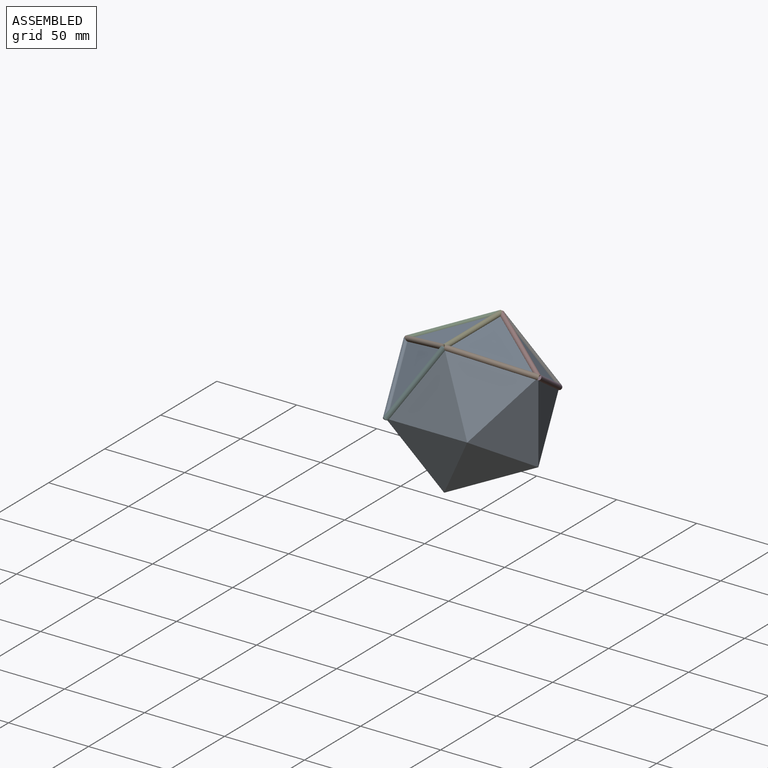
[diagram: assembled view]
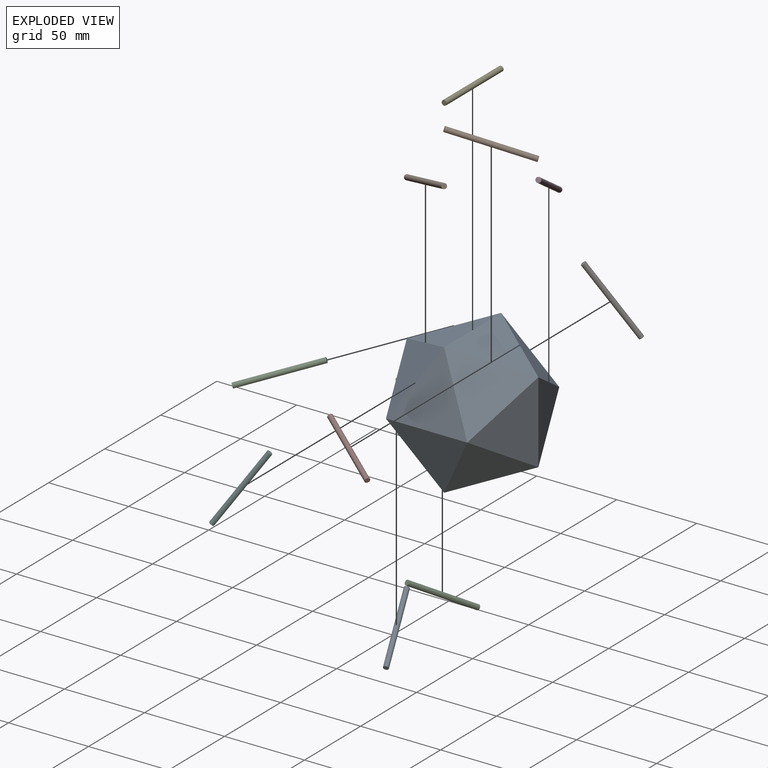
[diagram: exploded view]
GUIDED TOUR — MATED ASSEMBLY (Onshape document 44c461fbfb74a6c415e1d809, AutoMate assembly 44c461fbfb74a6c415e1d809_ab152a500315ef095dabaabe_320af2ce4ad42e542c5491ca_default)

This assembly has 11 components, labeled P0..P10 below (a component is one placed occurrence of a part; the same part can appear more than once), held together by 10 mates. A mate is a constraint between two components; its type names the relative motion it leaves free:
  CYLINDRICAL — leaves both rotation about and translation along the listed axis free.
Axis/direction vectors are unit vectors and 'through' points are millimeter coordinates, both in the assembly's world frame.

MATES
  1. CYLINDRICAL "Cylindrical 3": P4 <-> P8, axis (0.000, -1.000, 0.000) through (0.00, 0.00, 41.10) mm
  2. CYLINDRICAL "Cylindrical 6": P8 <-> P6, axis (-0.500, -0.309, 0.809) through (12.70, 33.25, 20.55) mm
  3. CYLINDRICAL "Cylindrical 1": P8 <-> P1, axis (0.809, -0.500, 0.309) through (-20.55, -12.70, 33.25) mm
  4. CYLINDRICAL "Cylindrical 8": P5 <-> P8, axis (-0.500, -0.309, -0.809) through (-12.70, -33.25, 20.55) mm
  5. CYLINDRICAL "Cylindrical 7": P8 <-> P3, axis (-0.309, 0.809, -0.500) through (33.25, 20.55, 12.70) mm
  6. CYLINDRICAL "Cylindrical 5": P10 <-> P8, axis (-0.809, -0.500, -0.309) through (-20.55, 12.70, 33.25) mm
  7. CYLINDRICAL "Cylindrical 2": P9 <-> P8, axis (-0.809, -0.500, 0.309) through (20.55, -12.70, 33.25) mm
  8. CYLINDRICAL "Cylindrical 4": P7 <-> P8, axis (-0.809, 0.500, 0.309) through (20.55, 12.70, 33.25) mm
  9. CYLINDRICAL "Cylindrical 10": P2 <-> P8, axis (-0.309, -0.809, 0.500) through (-33.25, 20.55, 12.70) mm
  10. CYLINDRICAL "Cylindrical 9": P0 <-> P8, axis (0.309, -0.809, -0.500) through (-33.25, -20.55, 12.70) mm

ASSEMBLY ORDER
  1. P8 — the base component [order verified]
  2. P4 [order verified]
  3. P10 [order verified]
  4. P7 [order verified]
  5. P1 [order verified]
  6. P9 [order verified]
  7. P0 [order verified]
  8. P2 [order verified]
  9. P3 [order verified]
  10. P6 [order verified]
  11. P5 [order verified]
Order-tag legend:
  [order verified] — this step's position reverses a verified removal order: the component was checked to insert without passing through the ones already placed.

Of the 11 components, 1 carries the full construction recipe — the FeatureScript program that regenerates the part's solid from scratch; the rest are supplied as boundary geometry only.
Each toured component is shown spotlighted twice — in the assembled view, then in the exploded view, where a leader line traces a displaced component back to its assembled socket (saturated green if recipe-attached, orange if geometry-only; every other component desaturated gray) — followed by its recipe or geometry summary and the mates that hold it.
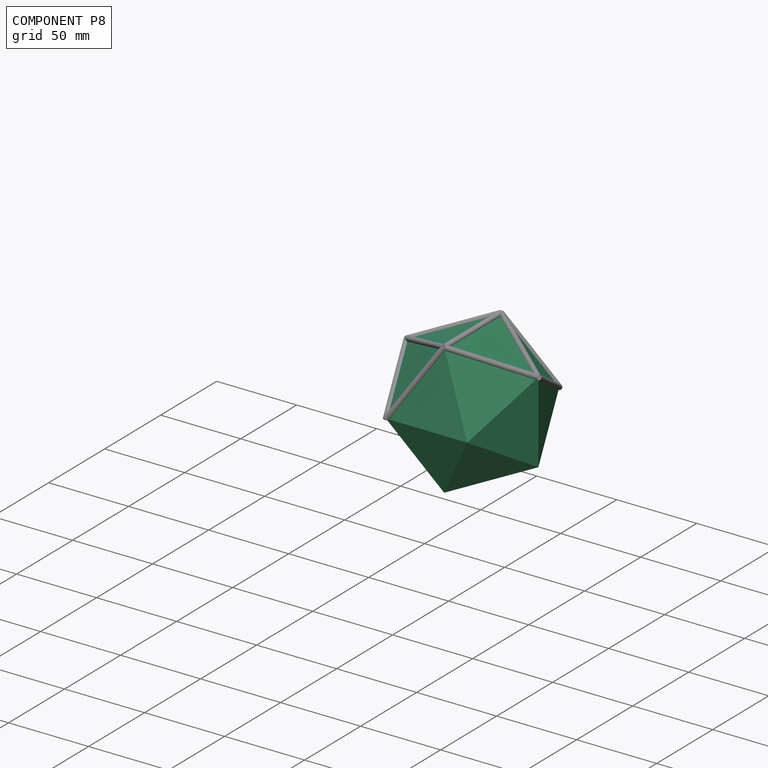
[diagram: component P8 — assembled]
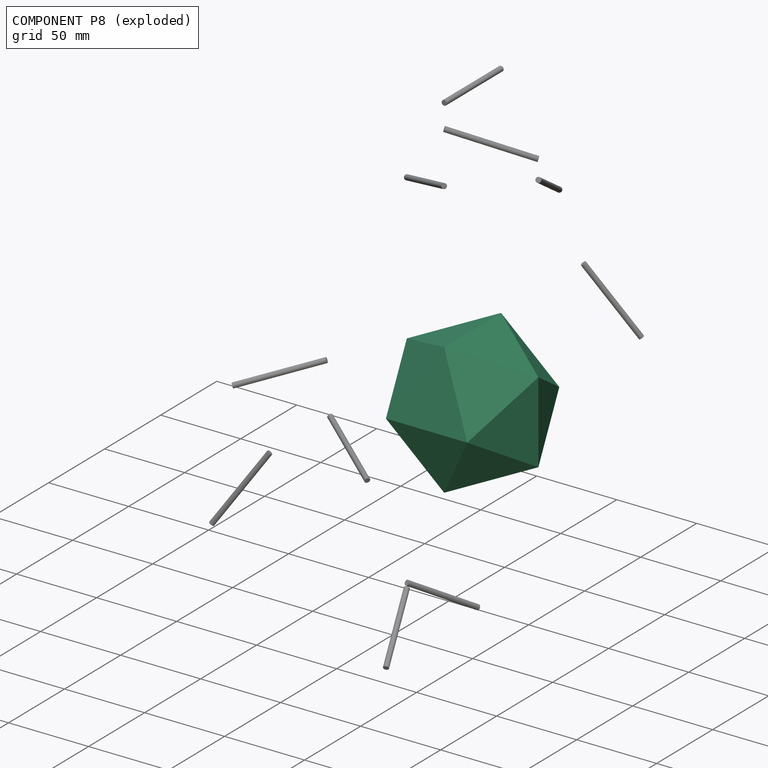
[diagram: component P8 — exploded]
COMPONENT P8 — recipe-attached (CADFS 00542385, mesh-verified: the recipe's output STEP matches this component's geometry to below the mesh-comparison resolution (tessellation chordal tolerance ~0.214 mm)).
Held by: CYLINDRICAL mate "Cylindrical 3" to P4; CYLINDRICAL mate "Cylindrical 6" to P6; CYLINDRICAL mate "Cylindrical 1" to P1; CYLINDRICAL mate "Cylindrical 8" to P5; CYLINDRICAL mate "Cylindrical 7" to P3; CYLINDRICAL mate "Cylindrical 5" to P10; CYLINDRICAL mate "Cylindrical 2" to P9; CYLINDRICAL mate "Cylindrical 4" to P7; CYLINDRICAL mate "Cylindrical 10" to P2; CYLINDRICAL mate "Cylindrical 9" to P0.
Construction recipe (FeatureScript — the CAD program that rebuilds this solid; sketch coordinates are in the units given by the * unit suffixes, e.g. mm):

FeatureScript 1511;
import(path : "onshape/std/geometry.fs", version : "1511.0");
import(path : "onshape/std/common.fs", version : "1511.0");
const mm = millimeter;
const VERTEX = EntityType.VERTEX;
const EDGE = EntityType.EDGE;
const FACE = EntityType.FACE;
const BODY = EntityType.BODY;
function v(x, y){return vector(x, y);}
function OD(order){return orderDisambiguation(order);}
function OSD(set){return originalSetDisambiguation(set);}
function TD(topology){return topologyDisambiguation(topology);}
function TDD(query){return trueDependencyDisambiguation(query);}
function sQuery(a, b, c) {return sketchEntityQuery(a, b, c);}

annotation { "Feature Type Name" : "Feature", "Feature Type Description" : "" }
export const myFeature = defineFeature(function(context is Context, id is Id, definition is map)
    precondition{}
    {
        {
            var Q0;
            Q0=qCreatedBy(makeId("Front.planeOp"),FACE);
            var sketch = newSketch(context, id + "F0", { "sketchPlane" : qUnion([Q0])});
            skLineSegment(sketch, "E0.bottom", {"start": v(41.1, -25.4) * mm, "end": v(-41.1, -25.4) * mm});
            skLineSegment(sketch, "E0.top", {"start": v(41.1, 25.4) * mm, "end": v(-41.1, 25.4) * mm});
            skLineSegment(sketch, "E0.left", {"start": v(41.1, -25.4) * mm, "end": v(41.1, 25.4) * mm});
            skLineSegment(sketch, "E0.right", {"start": v(-41.1, -25.4) * mm, "end": v(-41.1, 25.4) * mm});
            skPoint(sketch, "E0.middle", {"position": v(0, 0) * mm});
            skSolve(sketch);
        }
        {
            var Q0;
            Q0=qCreatedBy(makeId("Front.planeOp"),FACE);
            var sketch = newSketch(context, id + "F1", { "sketchPlane" : qUnion([Q0])});
            skArc(sketch, "E1", {"start": v(0, -48.31) * mm, "mid": v(48.31, 0) * mm, "end": v(0, 48.31) * mm});
            skLineSegment(sketch, "E2", {"start": v(0, -48.31) * mm, "end": v(0, 48.31) * mm});
            skSolve(sketch);
        }
        {
            var Q0;
            Q0=makeQuery(id+"F1.imprint","IMPRINT",FACE,{"disambiguationData":[TD([[makeQuery(id+"F1.imprint","IMPRINT",EDGE,{"derivedFrom":sQuery(id+"F1.wireOp",EDGE,"E1")}),1.0]])]});
            var sketch = newSketch(context, id + "F2", { "sketchPlane" : qUnion([Q0])});
            skLineSegment(sketch, "E3", {"start": v(0, 0) * mm, "end": v(0, 112.6) * mm, "construction": true});
            skSolve(sketch);
        }
        {
            var Q0;
            Q0=makeQuery(id+"F1.imprint","IMPRINT",FACE,{"disambiguationData":[TD([[makeQuery(id+"F1.imprint","IMPRINT",EDGE,{"derivedFrom":sQuery(id+"F1.wireOp",EDGE,"E1")}),1.0]])]});
            var Q1;
            Q1=sQuery(id+"F1.wireOp",EDGE,"E1");
            var Q2;
            Q2=sQuery(id+"F2.wireOp",EDGE,"E3");
            revolve(context, id + "F3", {"entities" : qUnion([Q0]), "surfaceEntities" : qUnion([Q1]), "axis" : qUnion([Q2]), "revolveType" : RevolveType.FULL});
        }
        {
            var Q0;
            Q0=qCreatedBy(makeId("Top.planeOp"),FACE);
            var sketch = newSketch(context, id + "F4", { "sketchPlane" : qUnion([Q0])});
            skLineSegment(sketch, "E4.bottom", {"start": v(25.4, 41.1) * mm, "end": v(-25.4, 41.1) * mm});
            skLineSegment(sketch, "E4.top", {"start": v(25.4, -41.1) * mm, "end": v(-25.4, -41.1) * mm});
            skLineSegment(sketch, "E4.left", {"start": v(25.4, 41.1) * mm, "end": v(25.4, -41.1) * mm});
            skLineSegment(sketch, "E4.right", {"start": v(-25.4, 41.1) * mm, "end": v(-25.4, -41.1) * mm});
            skPoint(sketch, "E4.middle", {"position": v(0, 0) * mm});
            skSolve(sketch);
        }
        {
            var Q0;
            Q0=qCreatedBy(makeId("Right.planeOp"),FACE);
            var sketch = newSketch(context, id + "F5", { "sketchPlane" : qUnion([Q0])});
            skLineSegment(sketch, "E5.bottom", {"start": v(25.4, -41.1) * mm, "end": v(-25.4, -41.1) * mm});
            skLineSegment(sketch, "E5.top", {"start": v(25.4, 41.1) * mm, "end": v(-25.4, 41.1) * mm});
            skLineSegment(sketch, "E5.left", {"start": v(25.4, -41.1) * mm, "end": v(25.4, 41.1) * mm});
            skLineSegment(sketch, "E5.right", {"start": v(-25.4, -41.1) * mm, "end": v(-25.4, 41.1) * mm});
            skPoint(sketch, "E5.middle", {"position": v(0, 0) * mm});
            skSolve(sketch);
        }
        {
            var Q0;
            Q0=sQuery(id+"F5.wireOp",VERTEX,"E5.right.end");
            var Q1;
            Q1=sQuery(id+"F0.wireOp",VERTEX,"E0.left.end");
            var Q2;
            Q2=sQuery(id+"F5.wireOp",VERTEX,"E5.left.end");
            cPlane(context, id + "F6", {"entities" : qUnion([Q0, Q1, Q2]), "cplaneType" : CPlaneType.THREE_POINT, "offset" : 25.4 * mm, "width" : 152.4 * mm, "height" : 152.4 * mm});
        }
        {
            var Q0;
            Q0=qCreatedBy(id+"F6.planeOp",FACE);
            var sketch = newSketch(context, id + "F7", { "sketchPlane" : qUnion([Q0])});
            skCircle(sketch, "E6", {"center": v(0, 0) * mm, "radius": 29.33 * mm});
            skSolve(sketch);
        }
        {
            var Q0;
            Q0 = qSketchRegion(id + "F7", true);
            var Q1;
            Q1=makeQuery(id+"F3.opRevolve","SWEPT_BODY",BODY,{"disambiguationData":[OSD([sQuery(id+"F1.wireOp",EDGE,"E1")])]});
            extrude(context, id + "F8", {"entities" : qUnion([Q0]), "operationType" : NewBodyOperationType.REMOVE, "endBound" : BoundingType.UP_TO_NEXT, "oppositeDirection" : true, "depth" : 25.4 * mm, "endBoundEntityBody" : qUnion([Q1]), "offsetDistance" : 25.4 * mm});
        }
        {
            var Q0;
            Q0=sQuery(id+"F0.wireOp",VERTEX,"E0.right.end");
            var Q1;
            Q1=sQuery(id+"F5.wireOp",VERTEX,"E5.right.end");
            var Q2;
            Q2=sQuery(id+"F5.wireOp",VERTEX,"E5.left.end");
            cPlane(context, id + "F9", {"entities" : qUnion([Q0, Q1, Q2]), "cplaneType" : CPlaneType.THREE_POINT, "offset" : 25.4 * mm, "width" : 152.4 * mm, "height" : 152.4 * mm});
        }
        {
            var Q0;
            Q0=qCreatedBy(id+"F9.planeOp",FACE);
            var sketch = newSketch(context, id + "F10", { "sketchPlane" : qUnion([Q0])});
            skCircle(sketch, "E7", {"center": v(0, 0) * mm, "radius": 29.33 * mm});
            skSolve(sketch);
        }
        {
            var Q0;
            Q0 = qSketchRegion(id + "F10", true);
            extrude(context, id + "F11", {"entities" : qUnion([Q0]), "operationType" : NewBodyOperationType.REMOVE, "endBound" : BoundingType.UP_TO_NEXT, "oppositeDirection" : true, "depth" : 25.4 * mm, "offsetDistance" : 25.4 * mm});
        }
        {
            var Q0;
            Q0=sQuery(id+"F4.wireOp",VERTEX,"E4.right.end");
            var Q1;
            Q1=sQuery(id+"F0.wireOp",VERTEX,"E0.right.end");
            var Q2;
            Q2=sQuery(id+"F5.wireOp",VERTEX,"E5.right.end");
            cPlane(context, id + "F12", {"entities" : qUnion([Q0, Q1, Q2]), "cplaneType" : CPlaneType.THREE_POINT, "offset" : 25.4 * mm, "width" : 152.4 * mm, "height" : 152.4 * mm});
        }
        {
            var Q0;
            Q0=qCreatedBy(id+"F12.planeOp",FACE);
            var sketch = newSketch(context, id + "F13", { "sketchPlane" : qUnion([Q0])});
            skCircle(sketch, "E8", {"center": v(0, 0) * mm, "radius": 29.33 * mm});
            skSolve(sketch);
        }
        {
            var Q0;
            Q0 = qSketchRegion(id + "F13", true);
            extrude(context, id + "F14", {"entities" : qUnion([Q0]), "operationType" : NewBodyOperationType.REMOVE, "endBound" : BoundingType.UP_TO_NEXT, "depth" : 25.4 * mm, "offsetDistance" : 25.4 * mm});
        }
        {
            var Q0;
            Q0=sQuery(id+"F4.wireOp",VERTEX,"E4.right.end");
            var Q1;
            Q1=sQuery(id+"F5.wireOp",VERTEX,"E5.right.end");
            var Q2;
            Q2=sQuery(id+"F4.wireOp",VERTEX,"E4.left.end");
            cPlane(context, id + "F15", {"entities" : qUnion([Q0, Q1, Q2]), "cplaneType" : CPlaneType.THREE_POINT, "offset" : 25.4 * mm, "width" : 152.4 * mm, "height" : 152.4 * mm});
        }
        {
            var Q0;
            Q0=qCreatedBy(id+"F15.planeOp",FACE);
            var sketch = newSketch(context, id + "F16", { "sketchPlane" : qUnion([Q0])});
            skCircle(sketch, "E9", {"center": v(0, 0) * mm, "radius": 29.33 * mm});
            skSolve(sketch);
        }
        {
            var Q0;
            Q0 = qSketchRegion(id + "F16", true);
            extrude(context, id + "F17", {"entities" : qUnion([Q0]), "operationType" : NewBodyOperationType.REMOVE, "endBound" : BoundingType.UP_TO_NEXT, "depth" : 25.4 * mm, "offsetDistance" : 25.4 * mm});
        }
        {
            var Q0;
            Q0=sQuery(id+"F4.wireOp",VERTEX,"E4.left.end");
            var Q1;
            Q1=sQuery(id+"F5.wireOp",VERTEX,"E5.right.end");
            var Q2;
            Q2=sQuery(id+"F0.wireOp",VERTEX,"E0.left.end");
            cPlane(context, id + "F18", {"entities" : qUnion([Q0, Q1, Q2]), "cplaneType" : CPlaneType.THREE_POINT, "offset" : 25.4 * mm, "width" : 152.4 * mm, "height" : 152.4 * mm});
        }
        {
            var Q0;
            Q0=qCreatedBy(id+"F18.planeOp",FACE);
            var sketch = newSketch(context, id + "F19", { "sketchPlane" : qUnion([Q0])});
            skCircle(sketch, "E10", {"center": v(0, 0) * mm, "radius": 29.33 * mm});
            skSolve(sketch);
        }
        {
            var Q0;
            Q0 = qSketchRegion(id + "F19", true);
            extrude(context, id + "F20", {"entities" : qUnion([Q0]), "operationType" : NewBodyOperationType.REMOVE, "endBound" : BoundingType.UP_TO_NEXT, "depth" : 25.4 * mm, "offsetDistance" : 25.4 * mm});
        }
        {
            var Q0;
            Q0=sQuery(id+"F4.wireOp",VERTEX,"E4.left.start");
            var Q1;
            Q1=sQuery(id+"F0.wireOp",VERTEX,"E0.left.end");
            var Q2;
            Q2=sQuery(id+"F5.wireOp",VERTEX,"E5.left.end");
            cPlane(context, id + "F21", {"entities" : qUnion([Q0, Q1, Q2]), "cplaneType" : CPlaneType.THREE_POINT, "offset" : 25.4 * mm, "width" : 152.4 * mm, "height" : 152.4 * mm});
        }
        {
            var Q0;
            Q0=qCreatedBy(id+"F21.planeOp",FACE);
            var sketch = newSketch(context, id + "F22", { "sketchPlane" : qUnion([Q0])});
            skCircle(sketch, "E11", {"center": v(0, 0) * mm, "radius": 29.33 * mm});
            skSolve(sketch);
        }
        {
            var Q0;
            Q0 = qSketchRegion(id + "F22", true);
            extrude(context, id + "F23", {"entities" : qUnion([Q0]), "operationType" : NewBodyOperationType.REMOVE, "endBound" : BoundingType.UP_TO_NEXT, "depth" : 25.4 * mm, "offsetDistance" : 25.4 * mm});
        }
        {
            var Q0;
            Q0=sQuery(id+"F4.wireOp",VERTEX,"E4.left.start");
            var Q1;
            Q1=sQuery(id+"F4.wireOp",VERTEX,"E4.right.start");
            var Q2;
            Q2=sQuery(id+"F5.wireOp",VERTEX,"E5.left.end");
            cPlane(context, id + "F24", {"entities" : qUnion([Q0, Q1, Q2]), "cplaneType" : CPlaneType.THREE_POINT, "offset" : 25.4 * mm, "width" : 152.4 * mm, "height" : 152.4 * mm});
        }
        {
            var Q0;
            Q0=qCreatedBy(id+"F24.planeOp",FACE);
            var sketch = newSketch(context, id + "F25", { "sketchPlane" : qUnion([Q0])});
            skCircle(sketch, "E12", {"center": v(0, 0) * mm, "radius": 29.33 * mm});
            skSolve(sketch);
        }
        {
            var Q0;
            Q0 = qSketchRegion(id + "F25", true);
            extrude(context, id + "F26", {"entities" : qUnion([Q0]), "operationType" : NewBodyOperationType.REMOVE, "endBound" : BoundingType.UP_TO_NEXT, "oppositeDirection" : true, "depth" : 25.4 * mm, "offsetDistance" : 25.4 * mm});
        }
        {
            var Q0;
            Q0=sQuery(id+"F4.wireOp",VERTEX,"E4.right.start");
            var Q1;
            Q1=sQuery(id+"F5.wireOp",VERTEX,"E5.left.end");
            var Q2;
            Q2=sQuery(id+"F0.wireOp",VERTEX,"E0.right.end");
            cPlane(context, id + "F27", {"entities" : qUnion([Q0, Q1, Q2]), "cplaneType" : CPlaneType.THREE_POINT, "offset" : 25.4 * mm, "width" : 152.4 * mm, "height" : 152.4 * mm});
        }
        {
            var Q0;
            Q0=qCreatedBy(id+"F27.planeOp",FACE);
            var sketch = newSketch(context, id + "F28", { "sketchPlane" : qUnion([Q0])});
            skCircle(sketch, "E13", {"center": v(0, 0) * mm, "radius": 29.33 * mm});
            skSolve(sketch);
        }
        {
            var Q0;
            Q0 = qSketchRegion(id + "F28", true);
            extrude(context, id + "F29", {"entities" : qUnion([Q0]), "operationType" : NewBodyOperationType.REMOVE, "endBound" : BoundingType.UP_TO_NEXT, "depth" : 25.4 * mm, "offsetDistance" : 25.4 * mm});
        }
        {
            var Q0;
            Q0=sQuery(id+"F0.wireOp",VERTEX,"E0.left.end");
            var Q1;
            Q1=sQuery(id+"F4.wireOp",VERTEX,"E4.left.end");
            var Q2;
            Q2=sQuery(id+"F0.wireOp",VERTEX,"E0.bottom.start");
            cPlane(context, id + "F30", {"entities" : qUnion([Q0, Q1, Q2]), "cplaneType" : CPlaneType.THREE_POINT, "offset" : 25.4 * mm, "width" : 152.4 * mm, "height" : 152.4 * mm});
        }
        {
            var Q0;
            Q0=qCreatedBy(id+"F30.planeOp",FACE);
            var sketch = newSketch(context, id + "F31", { "sketchPlane" : qUnion([Q0])});
            skCircle(sketch, "E14", {"center": v(0, 0) * mm, "radius": 29.33 * mm});
            skSolve(sketch);
        }
        {
            var Q0;
            Q0 = qSketchRegion(id + "F31", true);
            extrude(context, id + "F32", {"entities" : qUnion([Q0]), "operationType" : NewBodyOperationType.REMOVE, "endBound" : BoundingType.UP_TO_NEXT, "oppositeDirection" : true, "depth" : 25.4 * mm, "offsetDistance" : 25.4 * mm});
        }
        {
            var Q0;
            Q0=sQuery(id+"F0.wireOp",VERTEX,"E0.bottom.start");
            var Q1;
            Q1=sQuery(id+"F4.wireOp",VERTEX,"E4.left.start");
            var Q2;
            Q2=sQuery(id+"F0.wireOp",VERTEX,"E0.left.end");
            cPlane(context, id + "F33", {"entities" : qUnion([Q0, Q1, Q2]), "cplaneType" : CPlaneType.THREE_POINT, "offset" : 25.4 * mm, "width" : 152.4 * mm, "height" : 152.4 * mm});
        }
        {
            var Q0;
            Q0=qCreatedBy(id+"F33.planeOp",FACE);
            var sketch = newSketch(context, id + "F34", { "sketchPlane" : qUnion([Q0])});
            skCircle(sketch, "E15", {"center": v(0, 0) * mm, "radius": 29.33 * mm});
            skSolve(sketch);
        }
        {
            var Q0;
            Q0 = qSketchRegion(id + "F34", true);
            extrude(context, id + "F35", {"entities" : qUnion([Q0]), "operationType" : NewBodyOperationType.REMOVE, "endBound" : BoundingType.UP_TO_NEXT, "oppositeDirection" : true, "depth" : 25.4 * mm, "offsetDistance" : 25.4 * mm});
        }
        {
            var Q0;
            Q0=sQuery(id+"F0.wireOp",VERTEX,"E0.right.end");
            var Q1;
            Q1=sQuery(id+"F0.wireOp",VERTEX,"E0.right.start");
            var Q2;
            Q2=sQuery(id+"F4.wireOp",VERTEX,"E4.right.end");
            cPlane(context, id + "F36", {"entities" : qUnion([Q0, Q1, Q2]), "cplaneType" : CPlaneType.THREE_POINT, "offset" : 25.4 * mm, "width" : 152.4 * mm, "height" : 152.4 * mm});
        }
        {
            var Q0;
            Q0=qCreatedBy(id+"F36.planeOp",FACE);
            var sketch = newSketch(context, id + "F37", { "sketchPlane" : qUnion([Q0])});
            skCircle(sketch, "E16", {"center": v(0, 0) * mm, "radius": 29.33 * mm});
            skSolve(sketch);
        }
        {
            var Q0;
            Q0 = qSketchRegion(id + "F37", true);
            extrude(context, id + "F38", {"entities" : qUnion([Q0]), "operationType" : NewBodyOperationType.REMOVE, "endBound" : BoundingType.UP_TO_NEXT, "oppositeDirection" : true, "depth" : 25.4 * mm, "offsetDistance" : 25.4 * mm});
        }
        {
            var Q0;
            Q0=sQuery(id+"F0.wireOp",VERTEX,"E0.right.end");
            var Q1;
            Q1=sQuery(id+"F4.wireOp",VERTEX,"E4.right.start");
            var Q2;
            Q2=sQuery(id+"F0.wireOp",VERTEX,"E0.right.start");
            cPlane(context, id + "F39", {"entities" : qUnion([Q0, Q1, Q2]), "cplaneType" : CPlaneType.THREE_POINT, "offset" : 25.4 * mm, "width" : 152.4 * mm, "height" : 152.4 * mm});
        }
        {
            var Q0;
            Q0=qCreatedBy(id+"F39.planeOp",FACE);
            var sketch = newSketch(context, id + "F40", { "sketchPlane" : qUnion([Q0])});
            skCircle(sketch, "E17", {"center": v(0, 0) * mm, "radius": 29.33 * mm});
            skSolve(sketch);
        }
        {
            var Q0;
            Q0 = qSketchRegion(id + "F40", true);
            extrude(context, id + "F41", {"entities" : qUnion([Q0]), "operationType" : NewBodyOperationType.REMOVE, "endBound" : BoundingType.UP_TO_NEXT, "oppositeDirection" : true, "depth" : 25.4 * mm, "offsetDistance" : 25.4 * mm});
        }
        {
            var Q0;
            Q0=sQuery(id+"F4.wireOp",VERTEX,"E4.right.start");
            var Q1;
            Q1=sQuery(id+"F5.wireOp",VERTEX,"E5.left.start");
            var Q2;
            Q2=sQuery(id+"F0.wireOp",VERTEX,"E0.right.start");
            cPlane(context, id + "F42", {"entities" : qUnion([Q0, Q1, Q2]), "cplaneType" : CPlaneType.THREE_POINT, "offset" : 25.4 * mm, "width" : 152.4 * mm, "height" : 152.4 * mm});
        }
        {
            var Q0;
            Q0=qCreatedBy(id+"F42.planeOp",FACE);
            var sketch = newSketch(context, id + "F43", { "sketchPlane" : qUnion([Q0])});
            skCircle(sketch, "E18", {"center": v(0, 0) * mm, "radius": 29.33 * mm});
            skSolve(sketch);
        }
        {
            var Q0;
            Q0 = qSketchRegion(id + "F43", true);
            extrude(context, id + "F44", {"entities" : qUnion([Q0]), "operationType" : NewBodyOperationType.REMOVE, "endBound" : BoundingType.UP_TO_NEXT, "oppositeDirection" : true, "depth" : 25.4 * mm, "offsetDistance" : 25.4 * mm});
        }
        {
            var Q0;
            Q0=sQuery(id+"F5.wireOp",VERTEX,"E5.left.start");
            var Q1;
            Q1=sQuery(id+"F4.wireOp",VERTEX,"E4.right.start");
            var Q2;
            Q2=sQuery(id+"F4.wireOp",VERTEX,"E4.left.start");
            cPlane(context, id + "F45", {"entities" : qUnion([Q0, Q1, Q2]), "cplaneType" : CPlaneType.THREE_POINT, "offset" : 25.4 * mm, "width" : 152.4 * mm, "height" : 152.4 * mm});
        }
        {
            var Q0;
            Q0=qCreatedBy(id+"F45.planeOp",FACE);
            var sketch = newSketch(context, id + "F46", { "sketchPlane" : qUnion([Q0])});
            skCircle(sketch, "E19", {"center": v(0, 0) * mm, "radius": 29.33 * mm});
            skSolve(sketch);
        }
        {
            var Q0;
            Q0 = qSketchRegion(id + "F46", true);
            extrude(context, id + "F47", {"entities" : qUnion([Q0]), "operationType" : NewBodyOperationType.REMOVE, "endBound" : BoundingType.UP_TO_NEXT, "oppositeDirection" : true, "depth" : 25.4 * mm, "offsetDistance" : 25.4 * mm});
        }
        {
            var Q0;
            Q0=sQuery(id+"F4.wireOp",VERTEX,"E4.left.start");
            var Q1;
            Q1=sQuery(id+"F0.wireOp",VERTEX,"E0.bottom.start");
            var Q2;
            Q2=sQuery(id+"F5.wireOp",VERTEX,"E5.left.start");
            cPlane(context, id + "F48", {"entities" : qUnion([Q0, Q1, Q2]), "cplaneType" : CPlaneType.THREE_POINT, "offset" : 25.4 * mm, "width" : 152.4 * mm, "height" : 152.4 * mm});
        }
        {
            var Q0;
            Q0=qCreatedBy(id+"F48.planeOp",FACE);
            var sketch = newSketch(context, id + "F49", { "sketchPlane" : qUnion([Q0])});
            skCircle(sketch, "E20", {"center": v(0, 0) * mm, "radius": 29.33 * mm});
            skSolve(sketch);
        }
        {
            var Q0;
            Q0 = qSketchRegion(id + "F49", true);
            extrude(context, id + "F50", {"entities" : qUnion([Q0]), "operationType" : NewBodyOperationType.REMOVE, "endBound" : BoundingType.UP_TO_NEXT, "oppositeDirection" : true, "depth" : 25.4 * mm, "offsetDistance" : 25.4 * mm});
        }
        {
            var Q0;
            Q0=sQuery(id+"F4.wireOp",VERTEX,"E4.left.end");
            var Q1;
            Q1=sQuery(id+"F5.wireOp",VERTEX,"E5.right.start");
            var Q2;
            Q2=sQuery(id+"F0.wireOp",VERTEX,"E0.bottom.start");
            cPlane(context, id + "F51", {"entities" : qUnion([Q0, Q1, Q2]), "cplaneType" : CPlaneType.THREE_POINT, "offset" : 25.4 * mm, "width" : 152.4 * mm, "height" : 152.4 * mm});
        }
        {
            var Q0;
            Q0=qCreatedBy(id+"F51.planeOp",FACE);
            var sketch = newSketch(context, id + "F52", { "sketchPlane" : qUnion([Q0])});
            skCircle(sketch, "E21", {"center": v(0, 0) * mm, "radius": 29.33 * mm});
            skSolve(sketch);
        }
        {
            var Q0;
            Q0 = qSketchRegion(id + "F52", true);
            extrude(context, id + "F53", {"entities" : qUnion([Q0]), "operationType" : NewBodyOperationType.REMOVE, "endBound" : BoundingType.UP_TO_NEXT, "oppositeDirection" : true, "depth" : 25.4 * mm, "offsetDistance" : 25.4 * mm});
        }
        {
            var Q0;
            Q0=sQuery(id+"F5.wireOp",VERTEX,"E5.left.start");
            var Q1;
            Q1=sQuery(id+"F0.wireOp",VERTEX,"E0.bottom.start");
            var Q2;
            Q2=sQuery(id+"F5.wireOp",VERTEX,"E5.right.start");
            cPlane(context, id + "F54", {"entities" : qUnion([Q0, Q1, Q2]), "cplaneType" : CPlaneType.THREE_POINT, "offset" : 25.4 * mm, "width" : 152.4 * mm, "height" : 152.4 * mm});
        }
        {
            var Q0;
            Q0=qCreatedBy(id+"F54.planeOp",FACE);
            var sketch = newSketch(context, id + "F55", { "sketchPlane" : qUnion([Q0])});
            skCircle(sketch, "E22", {"center": v(0, 0) * mm, "radius": 29.33 * mm});
            skSolve(sketch);
        }
        {
            var Q0;
            Q0 = qSketchRegion(id + "F55", true);
            extrude(context, id + "F56", {"entities" : qUnion([Q0]), "operationType" : NewBodyOperationType.REMOVE, "endBound" : BoundingType.UP_TO_NEXT, "oppositeDirection" : true, "depth" : 25.4 * mm, "offsetDistance" : 25.4 * mm});
        }
        {
            var Q0;
            Q0=sQuery(id+"F5.wireOp",VERTEX,"E5.right.start");
            var Q1;
            Q1=sQuery(id+"F4.wireOp",VERTEX,"E4.left.end");
            var Q2;
            Q2=sQuery(id+"F4.wireOp",VERTEX,"E4.right.end");
            cPlane(context, id + "F57", {"entities" : qUnion([Q0, Q1, Q2]), "cplaneType" : CPlaneType.THREE_POINT, "offset" : 25.4 * mm, "width" : 152.4 * mm, "height" : 152.4 * mm});
        }
        {
            var Q0;
            Q0=qCreatedBy(id+"F57.planeOp",FACE);
            var sketch = newSketch(context, id + "F58", { "sketchPlane" : qUnion([Q0])});
            skCircle(sketch, "E23", {"center": v(0, 0) * mm, "radius": 29.33 * mm});
            skSolve(sketch);
        }
        {
            var Q0;
            Q0 = qSketchRegion(id + "F58", true);
            extrude(context, id + "F59", {"entities" : qUnion([Q0]), "operationType" : NewBodyOperationType.REMOVE, "endBound" : BoundingType.UP_TO_NEXT, "oppositeDirection" : true, "depth" : 25.4 * mm, "offsetDistance" : 25.4 * mm});
        }
        {
            var Q0;
            Q0=sQuery(id+"F5.wireOp",VERTEX,"E5.left.start");
            var Q1;
            Q1=sQuery(id+"F5.wireOp",VERTEX,"E5.right.start");
            var Q2;
            Q2=sQuery(id+"F0.wireOp",VERTEX,"E0.right.start");
            cPlane(context, id + "F60", {"entities" : qUnion([Q0, Q1, Q2]), "cplaneType" : CPlaneType.THREE_POINT, "offset" : 25.4 * mm, "width" : 152.4 * mm, "height" : 152.4 * mm});
        }
        {
            var Q0;
            Q0=qCreatedBy(id+"F60.planeOp",FACE);
            var sketch = newSketch(context, id + "F61", { "sketchPlane" : qUnion([Q0])});
            skCircle(sketch, "E24", {"center": v(0, 0) * mm, "radius": 29.33 * mm});
            skSolve(sketch);
        }
        {
            var Q0;
            Q0=sQuery(id+"F0.wireOp",VERTEX,"E0.right.start");
            var Q1;
            Q1=sQuery(id+"F4.wireOp",VERTEX,"E4.right.end");
            var Q2;
            Q2=sQuery(id+"F5.wireOp",VERTEX,"E5.right.start");
            cPlane(context, id + "F62", {"entities" : qUnion([Q0, Q1, Q2]), "cplaneType" : CPlaneType.THREE_POINT, "offset" : 25.4 * mm, "width" : 152.4 * mm, "height" : 152.4 * mm});
        }
        {
            var Q0;
            Q0=qCreatedBy(id+"F62.planeOp",FACE);
            var sketch = newSketch(context, id + "F63", { "sketchPlane" : qUnion([Q0])});
            skCircle(sketch, "E25", {"center": v(0, 0) * mm, "radius": 29.33 * mm});
            skSolve(sketch);
        }
        {
            var Q0;
            Q0 = qSketchRegion(id + "F61", true);
            extrude(context, id + "F64", {"entities" : qUnion([Q0]), "operationType" : NewBodyOperationType.REMOVE, "endBound" : BoundingType.UP_TO_NEXT, "oppositeDirection" : true, "depth" : 25.4 * mm, "offsetDistance" : 25.4 * mm});
        }
        {
            var Q0;
            Q0 = qSketchRegion(id + "F63", true);
            extrude(context, id + "F65", {"entities" : qUnion([Q0]), "operationType" : NewBodyOperationType.REMOVE, "endBound" : BoundingType.UP_TO_NEXT, "depth" : 25.4 * mm, "offsetDistance" : 25.4 * mm});
        }
    });
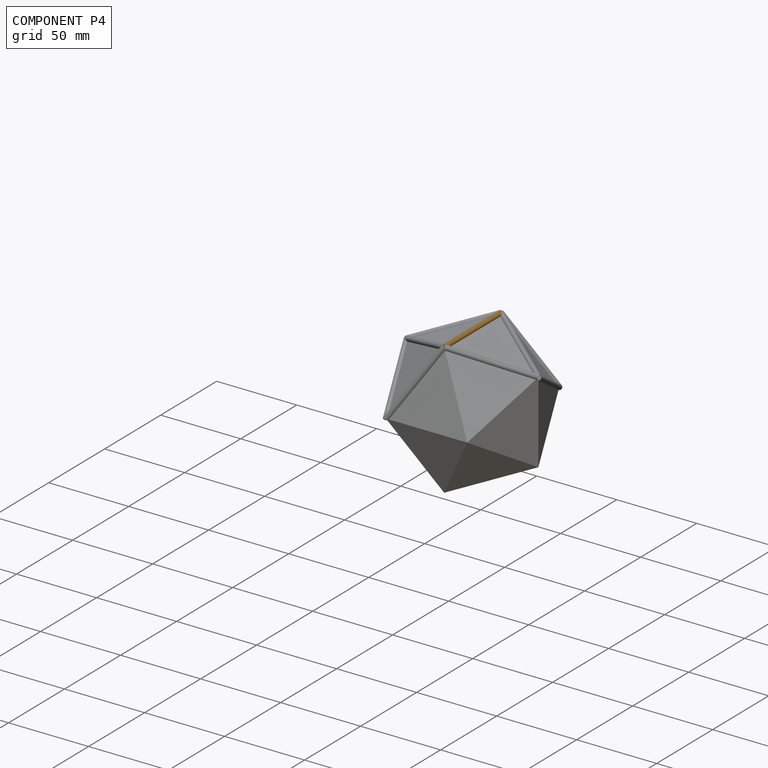
[diagram: component P4 — assembled]
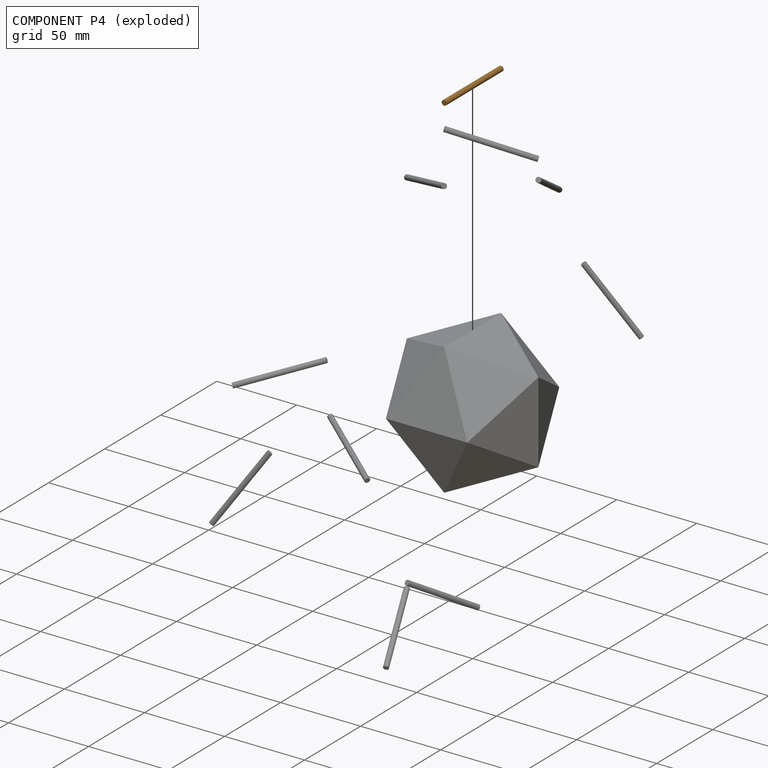
[diagram: component P4 — exploded]
COMPONENT P4 — geometry summary (no construction recipe available for this part):
  bounding box: 50.8 x 3.2 x 3.2 mm
  B-rep topology: 1 solid, 3 faces, 6 edges
  volume: 402 mm^3 (79% of its bounding box)
  symmetry: 2-fold rotationally symmetric about the x axis; 2-fold rotationally symmetric about the y axis; revolution-symmetric about the z axis through its bounding-box center; mirror-symmetric across its x mid-plane, y mid-plane, z mid-plane
Held by: CYLINDRICAL mate "Cylindrical 3" to P8.
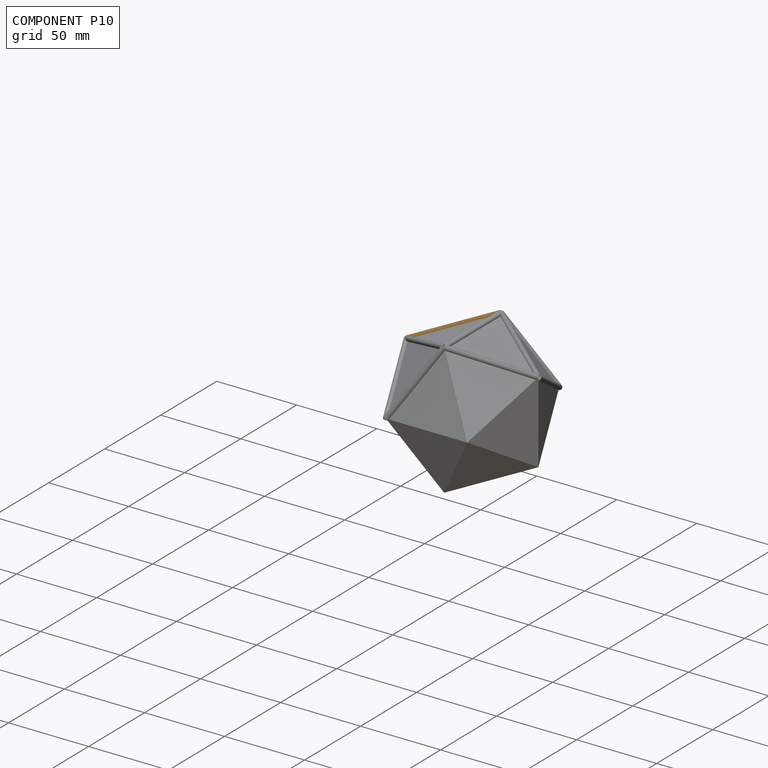
[diagram: component P10 — assembled]
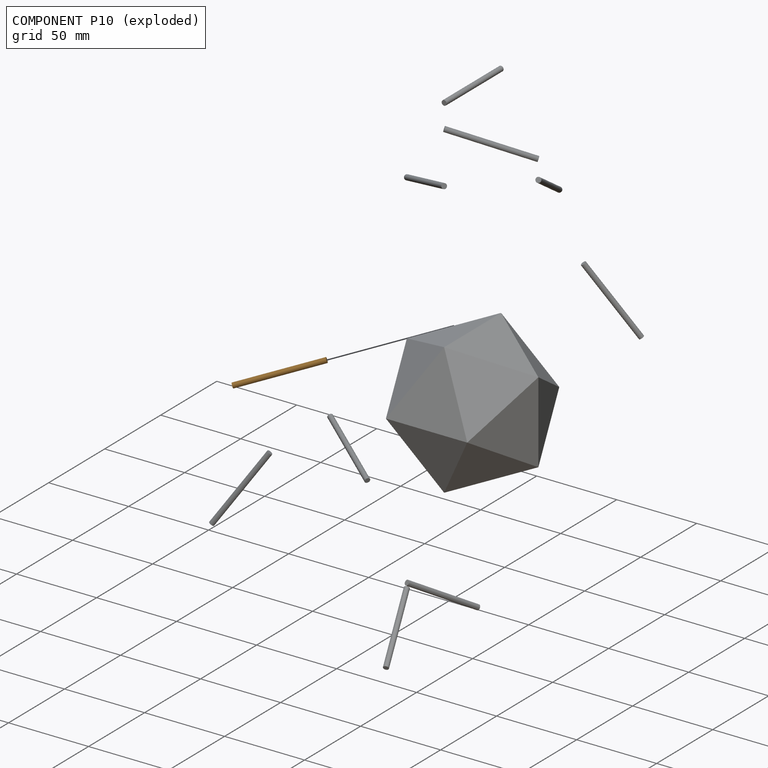
[diagram: component P10 — exploded]
COMPONENT P10 — geometry summary (no construction recipe available for this part):
  bounding box: 50.8 x 3.2 x 3.2 mm
  B-rep topology: 1 solid, 3 faces, 6 edges
  volume: 402 mm^3 (79% of its bounding box)
  symmetry: 2-fold rotationally symmetric about the x axis; 2-fold rotationally symmetric about the y axis; revolution-symmetric about the z axis through its bounding-box center; mirror-symmetric across its x mid-plane, y mid-plane, z mid-plane
Held by: CYLINDRICAL mate "Cylindrical 5" to P8.
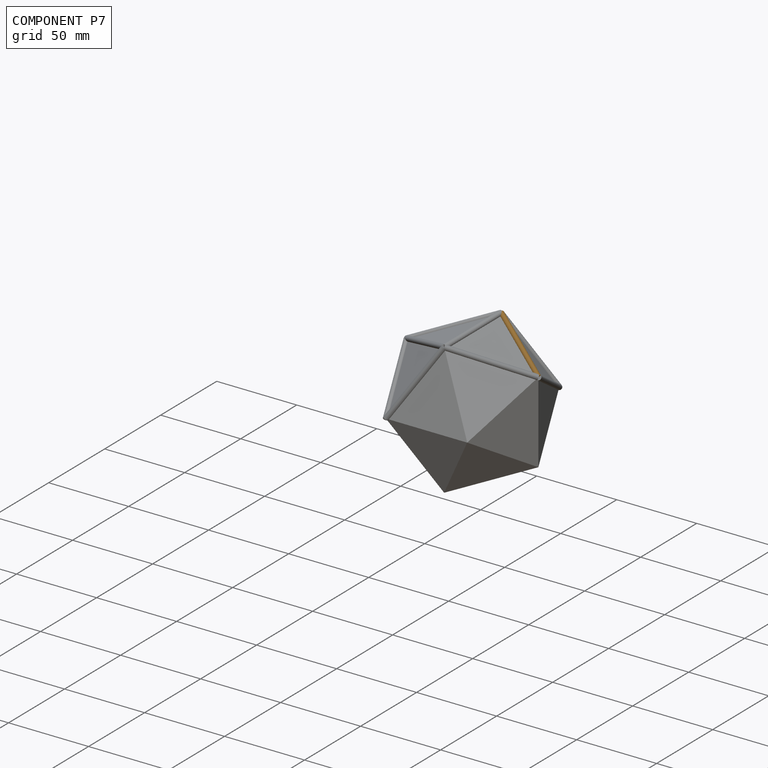
[diagram: component P7 — assembled]
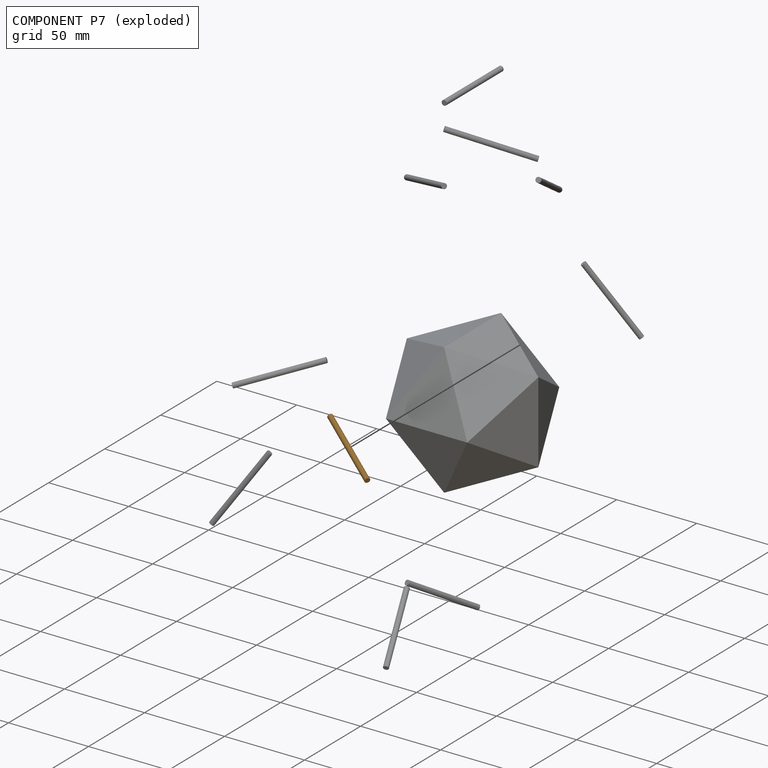
[diagram: component P7 — exploded]
COMPONENT P7 — geometry summary (no construction recipe available for this part):
  bounding box: 50.8 x 3.2 x 3.2 mm
  B-rep topology: 1 solid, 3 faces, 6 edges
  volume: 402 mm^3 (79% of its bounding box)
  symmetry: 2-fold rotationally symmetric about the x axis; 2-fold rotationally symmetric about the y axis; revolution-symmetric about the z axis through its bounding-box center; mirror-symmetric across its x mid-plane, y mid-plane, z mid-plane
Held by: CYLINDRICAL mate "Cylindrical 4" to P8.
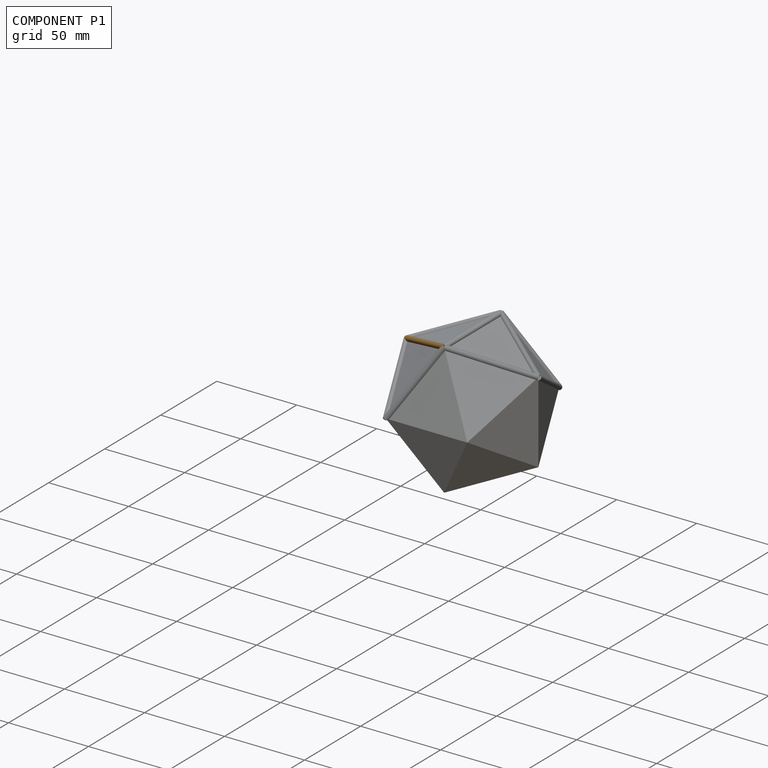
[diagram: component P1 — assembled]
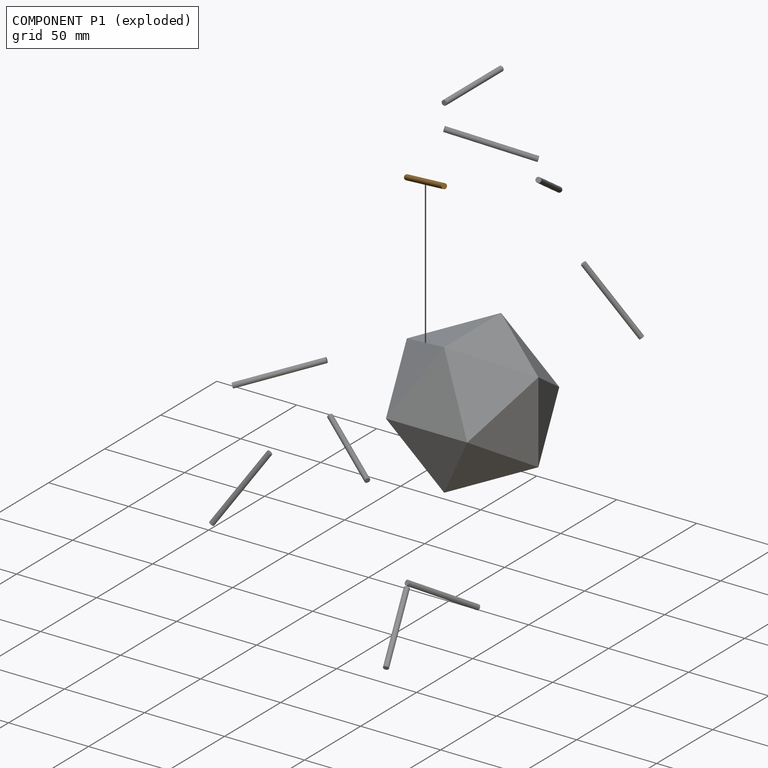
[diagram: component P1 — exploded]
COMPONENT P1 — geometry summary (no construction recipe available for this part):
  bounding box: 50.8 x 3.2 x 3.2 mm
  B-rep topology: 1 solid, 3 faces, 6 edges
  volume: 402 mm^3 (79% of its bounding box)
  symmetry: 2-fold rotationally symmetric about the x axis; 2-fold rotationally symmetric about the y axis; revolution-symmetric about the z axis through its bounding-box center; mirror-symmetric across its x mid-plane, y mid-plane, z mid-plane
Held by: CYLINDRICAL mate "Cylindrical 1" to P8.
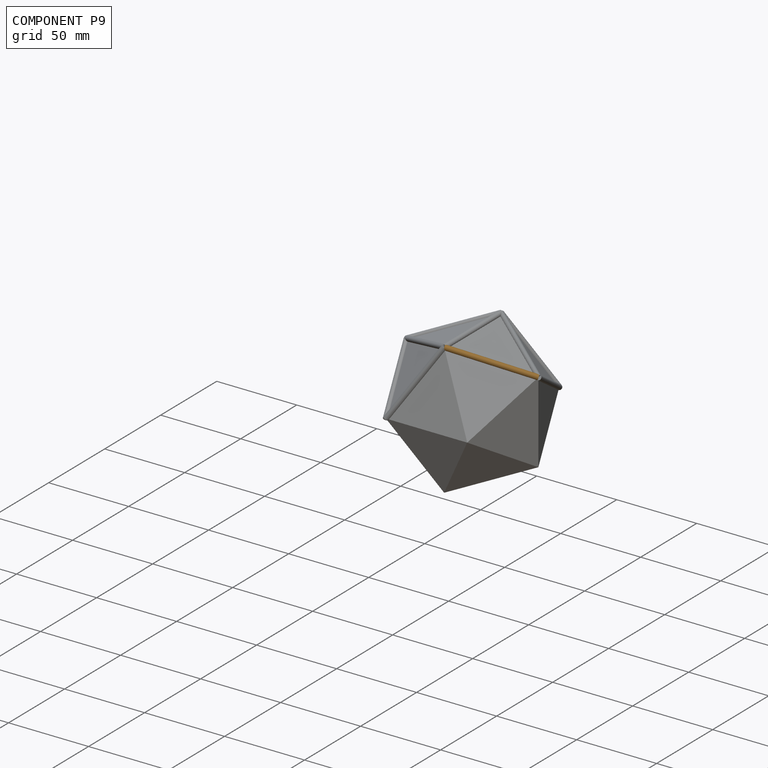
[diagram: component P9 — assembled]
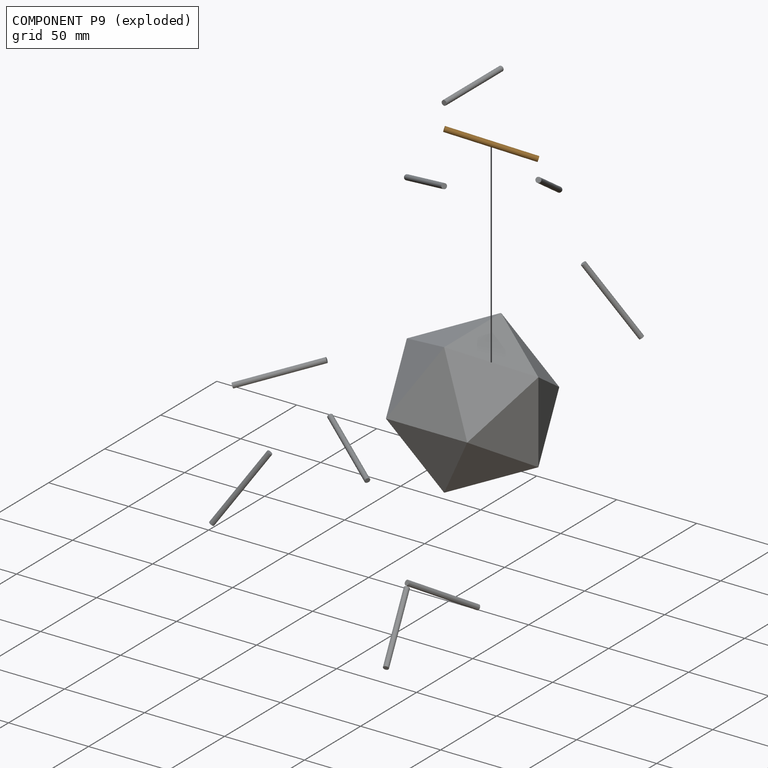
[diagram: component P9 — exploded]
COMPONENT P9 — geometry summary (no construction recipe available for this part):
  bounding box: 50.8 x 3.2 x 3.2 mm
  B-rep topology: 1 solid, 3 faces, 6 edges
  volume: 402 mm^3 (79% of its bounding box)
  symmetry: 2-fold rotationally symmetric about the x axis; 2-fold rotationally symmetric about the y axis; revolution-symmetric about the z axis through its bounding-box center; mirror-symmetric across its x mid-plane, y mid-plane, z mid-plane
Held by: CYLINDRICAL mate "Cylindrical 2" to P8.
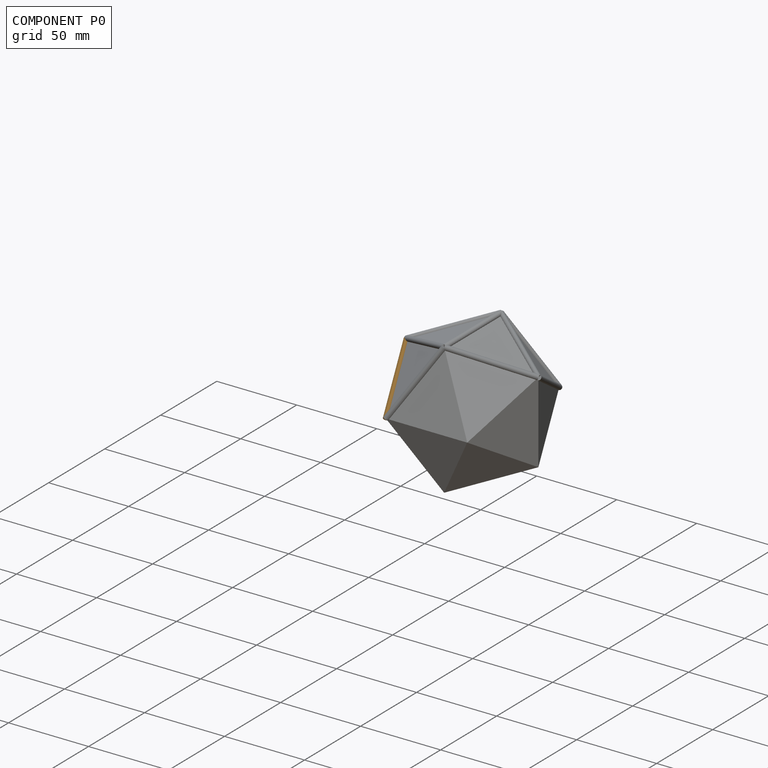
[diagram: component P0 — assembled]
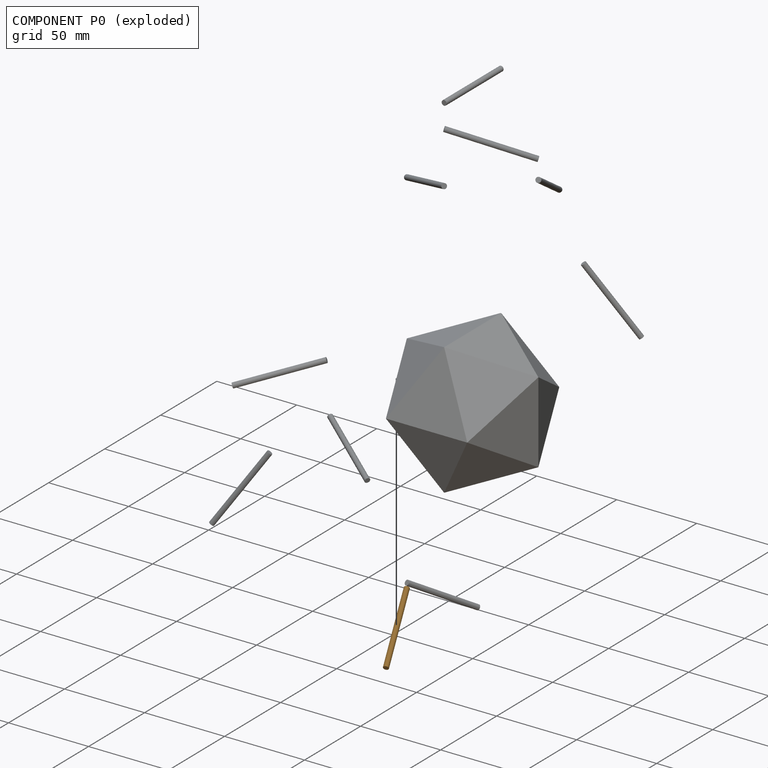
[diagram: component P0 — exploded]
COMPONENT P0 — geometry summary (no construction recipe available for this part):
  bounding box: 50.8 x 3.2 x 3.2 mm
  B-rep topology: 1 solid, 3 faces, 6 edges
  volume: 402 mm^3 (79% of its bounding box)
  symmetry: 2-fold rotationally symmetric about the x axis; 2-fold rotationally symmetric about the y axis; revolution-symmetric about the z axis through its bounding-box center; mirror-symmetric across its x mid-plane, y mid-plane, z mid-plane
Held by: CYLINDRICAL mate "Cylindrical 9" to P8.
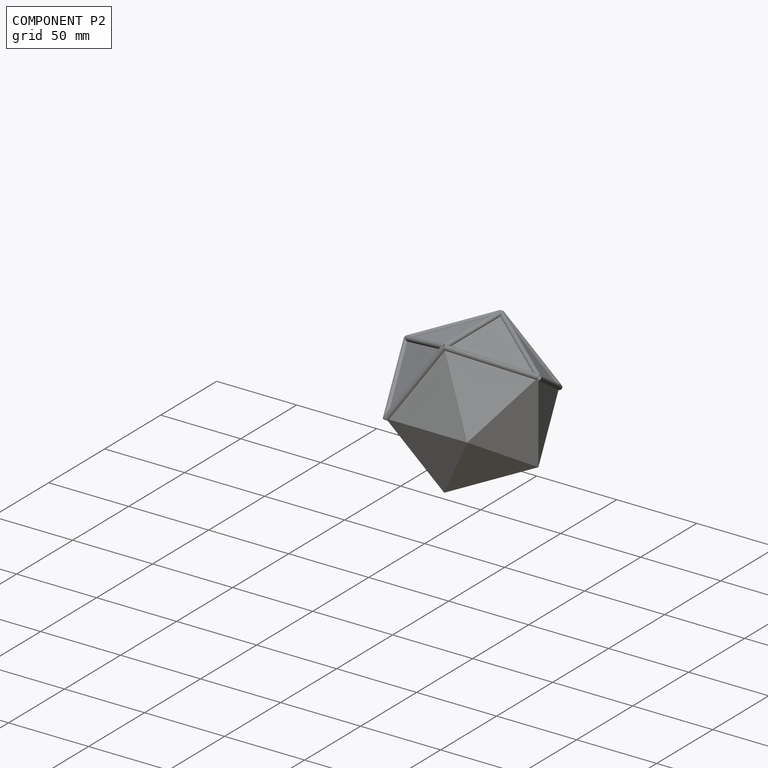
[diagram: component P2 — assembled]
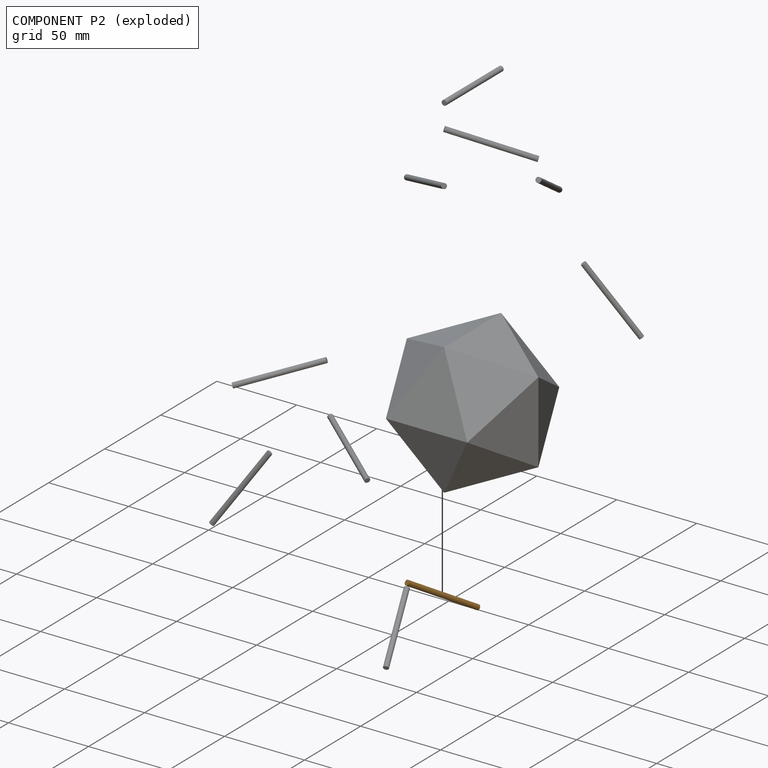
[diagram: component P2 — exploded]
COMPONENT P2 — geometry summary (no construction recipe available for this part):
  bounding box: 50.8 x 3.2 x 3.2 mm
  B-rep topology: 1 solid, 3 faces, 6 edges
  volume: 402 mm^3 (79% of its bounding box)
  symmetry: 2-fold rotationally symmetric about the x axis; 2-fold rotationally symmetric about the y axis; revolution-symmetric about the z axis through its bounding-box center; mirror-symmetric across its x mid-plane, y mid-plane, z mid-plane
Held by: CYLINDRICAL mate "Cylindrical 10" to P8.
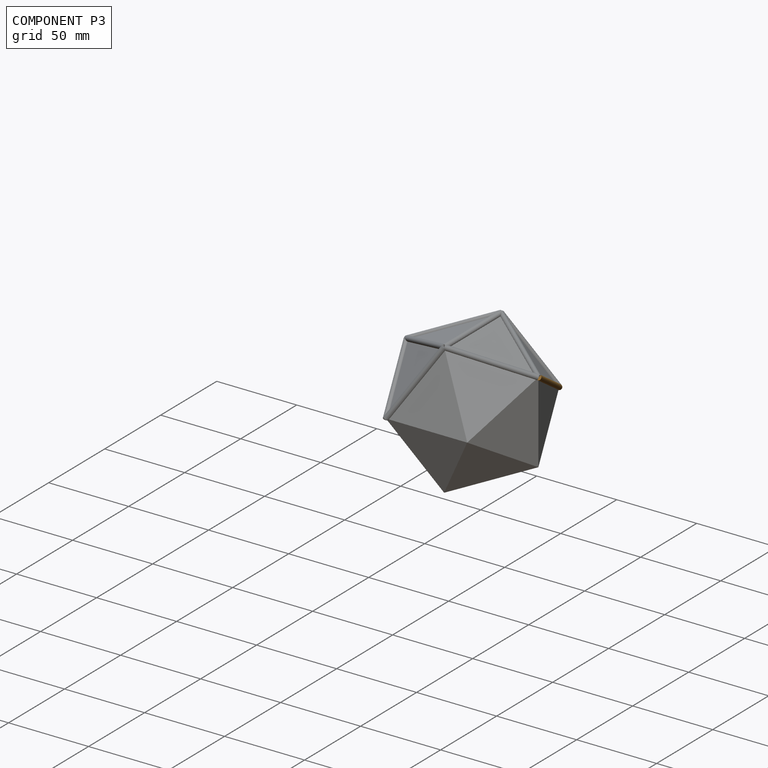
[diagram: component P3 — assembled]
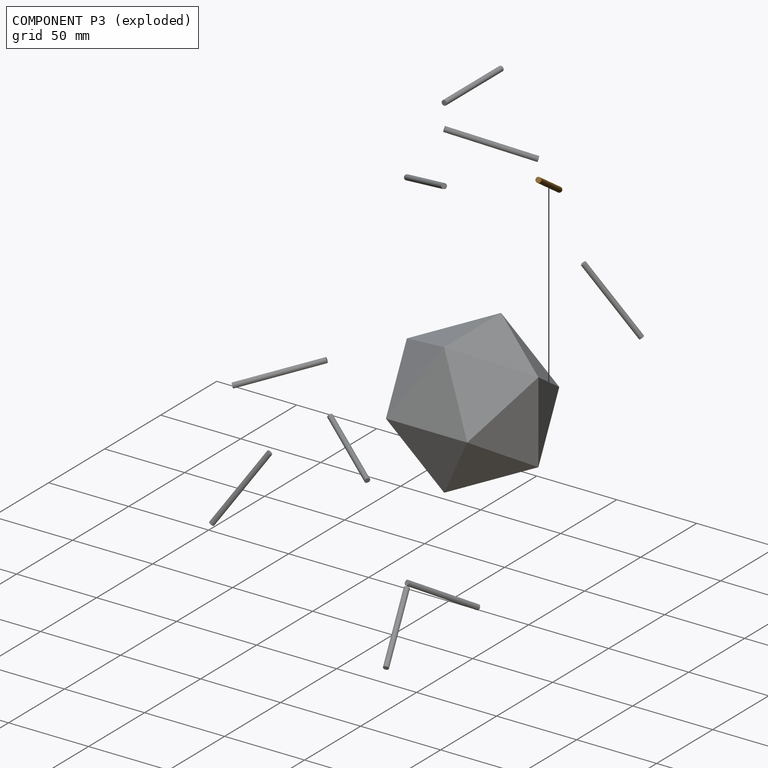
[diagram: component P3 — exploded]
COMPONENT P3 — geometry summary (no construction recipe available for this part):
  bounding box: 50.8 x 3.2 x 3.2 mm
  B-rep topology: 1 solid, 3 faces, 6 edges
  volume: 402 mm^3 (79% of its bounding box)
  symmetry: 2-fold rotationally symmetric about the x axis; 2-fold rotationally symmetric about the y axis; revolution-symmetric about the z axis through its bounding-box center; mirror-symmetric across its x mid-plane, y mid-plane, z mid-plane
Held by: CYLINDRICAL mate "Cylindrical 7" to P8.
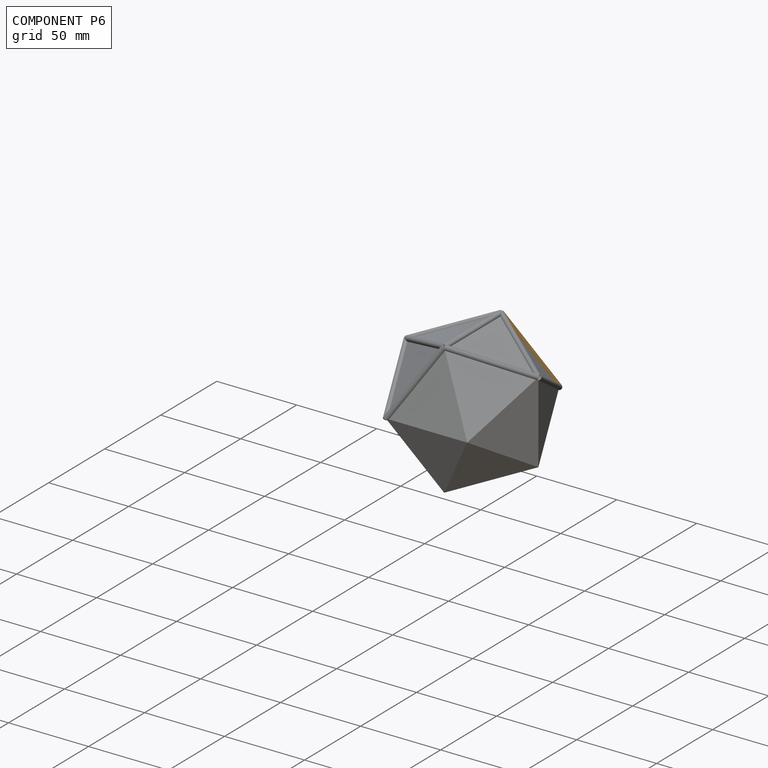
[diagram: component P6 — assembled]
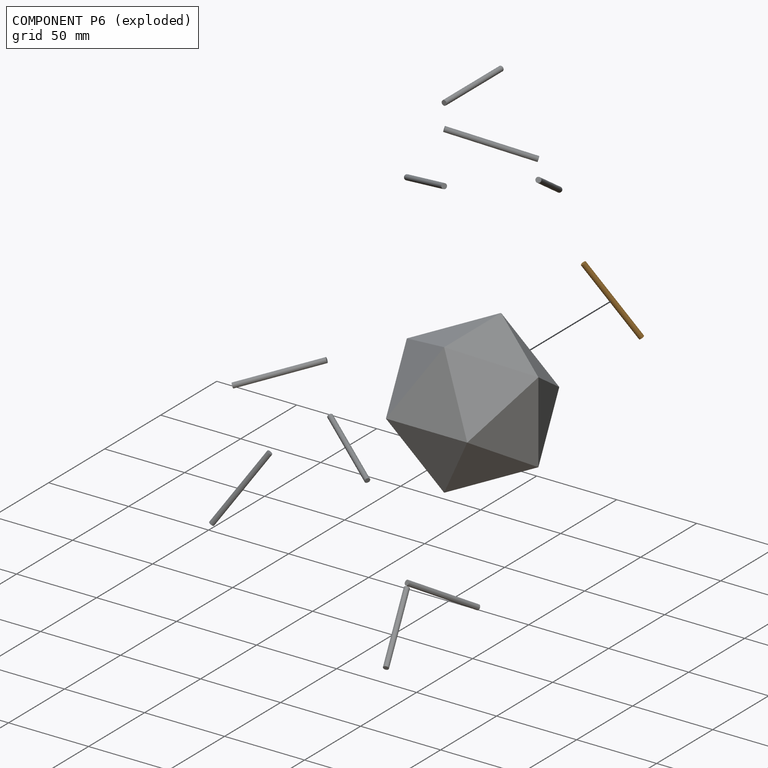
[diagram: component P6 — exploded]
COMPONENT P6 — geometry summary (no construction recipe available for this part):
  bounding box: 50.8 x 3.2 x 3.2 mm
  B-rep topology: 1 solid, 3 faces, 6 edges
  volume: 402 mm^3 (79% of its bounding box)
  symmetry: 2-fold rotationally symmetric about the x axis; 2-fold rotationally symmetric about the y axis; revolution-symmetric about the z axis through its bounding-box center; mirror-symmetric across its x mid-plane, y mid-plane, z mid-plane
Held by: CYLINDRICAL mate "Cylindrical 6" to P8.
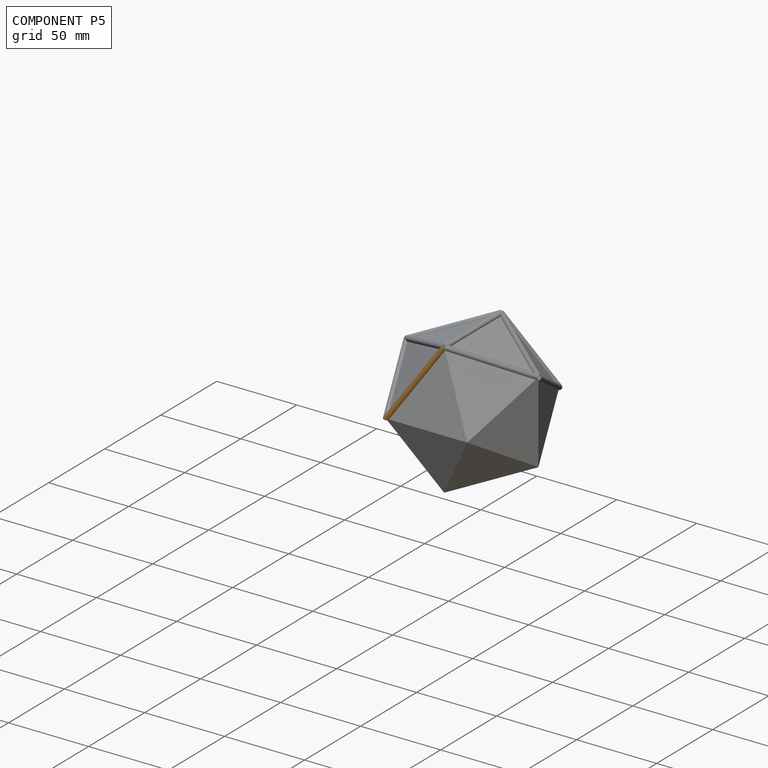
[diagram: component P5 — assembled]
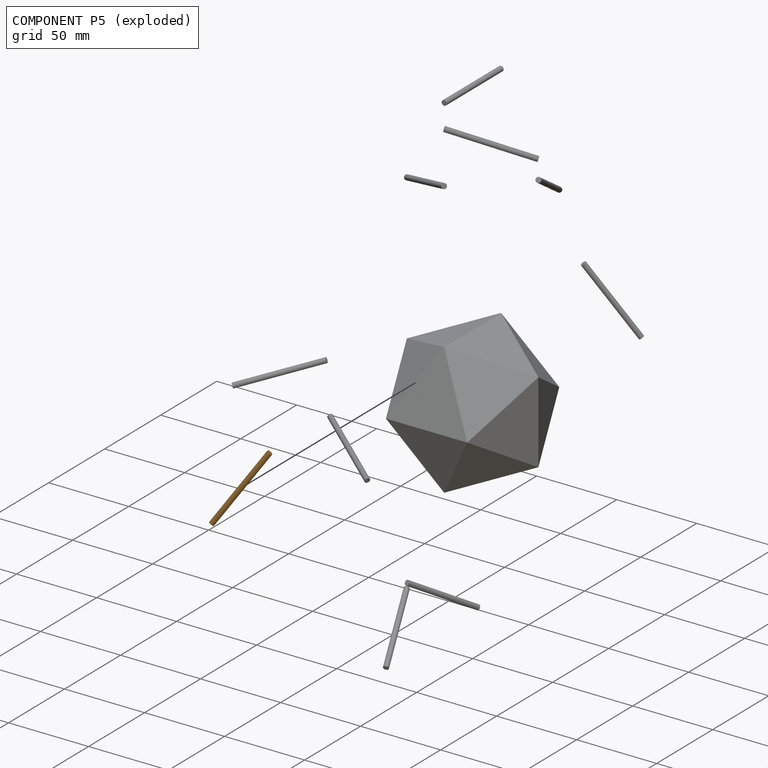
[diagram: component P5 — exploded]
COMPONENT P5 — geometry summary (no construction recipe available for this part):
  bounding box: 50.8 x 3.2 x 3.2 mm
  B-rep topology: 1 solid, 3 faces, 6 edges
  volume: 402 mm^3 (79% of its bounding box)
  symmetry: 2-fold rotationally symmetric about the x axis; 2-fold rotationally symmetric about the y axis; revolution-symmetric about the z axis through its bounding-box center; mirror-symmetric across its x mid-plane, y mid-plane, z mid-plane
Held by: CYLINDRICAL mate "Cylindrical 8" to P8.
PROVENANCE & LICENSES
Assembly (occurrences, transforms, mates, per-part STEP geometry): AutoMate dataset, Zenodo record 7776208, CC0.
Construction recipes: CADFS (HuggingFace VladPyatov/CADFS, CC-BY-4.0, layered over the ABC dataset), FeatureScript reconstruction programs keyed by ABC model id.
Join: ABC meta listings map ABC model id -> Onshape documentId; within a shared document, parts are matched by geometric signature (bounding-box dims + volume at 0.1% relative tolerance, exact B-rep face/solid counts).
Verification: 1 of this assembly's 11 components carries a recipe attachment, and every attachment is mesh-verified: the CADFS STEP and the AutoMate member STEP were compared as meshes in their shared local frame (symmetric sampled-point-to-mesh distance); worst across the 1 attachment: below the mesh-comparison resolution (tessellation chordal tolerance ~0.214 mm) on a 142 mm part.
Renders: orthographic iso camera (az 35 / el 25); the floor grid conveys scale (grid pitch printed in each image; no ruler). In the exploded view each component is displaced by its stored offset vector: the offsets alone carry the explosion direction (mate normal/axis signs are not orientation cues and do not encode it), and separation distances are assigned per mate-chain, not proportionally to assembly-order depth.
